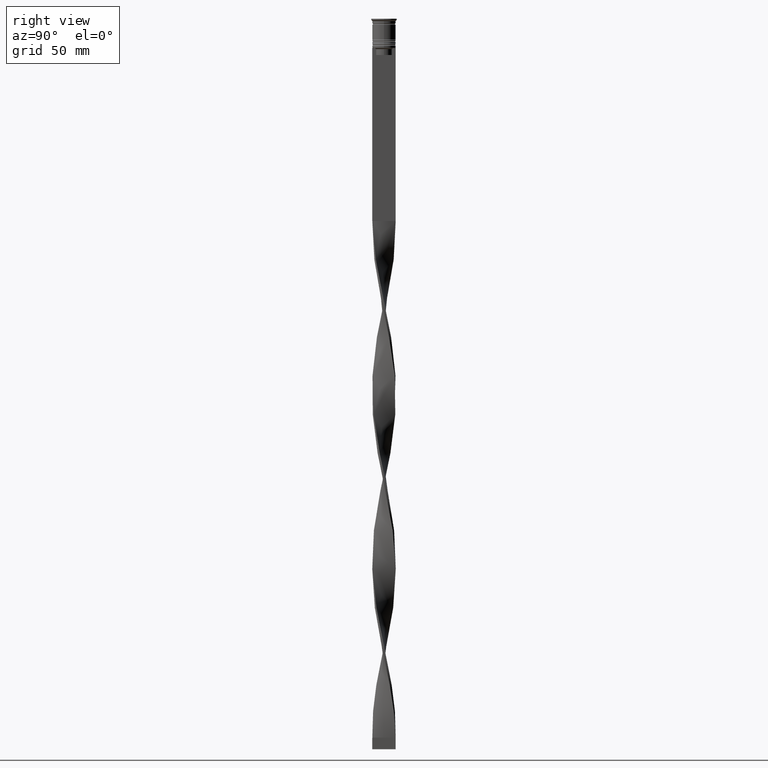
[diagram: clean part render]
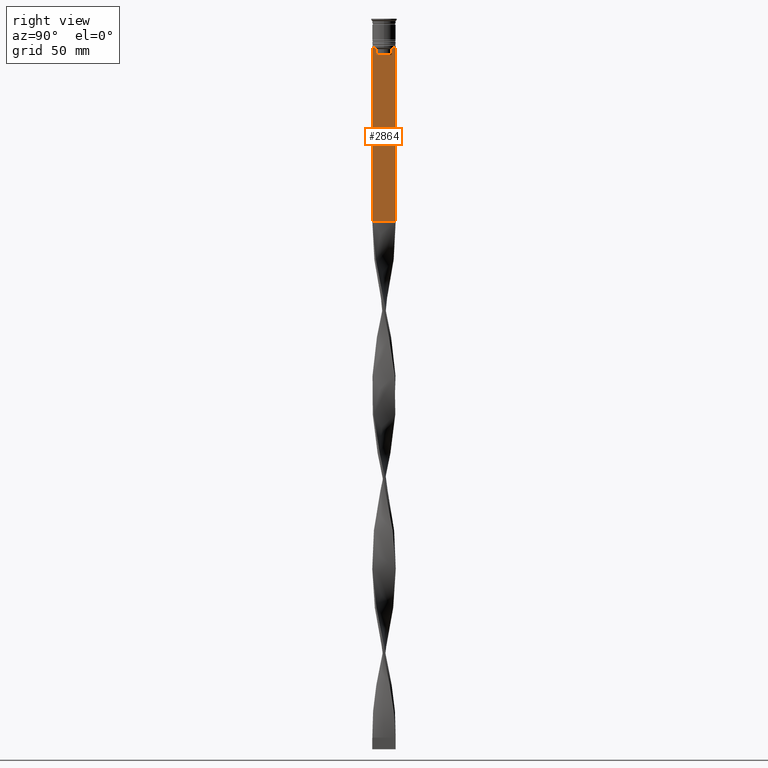
[diagram: same view with one face highlighted and labeled with its STEP entity id]
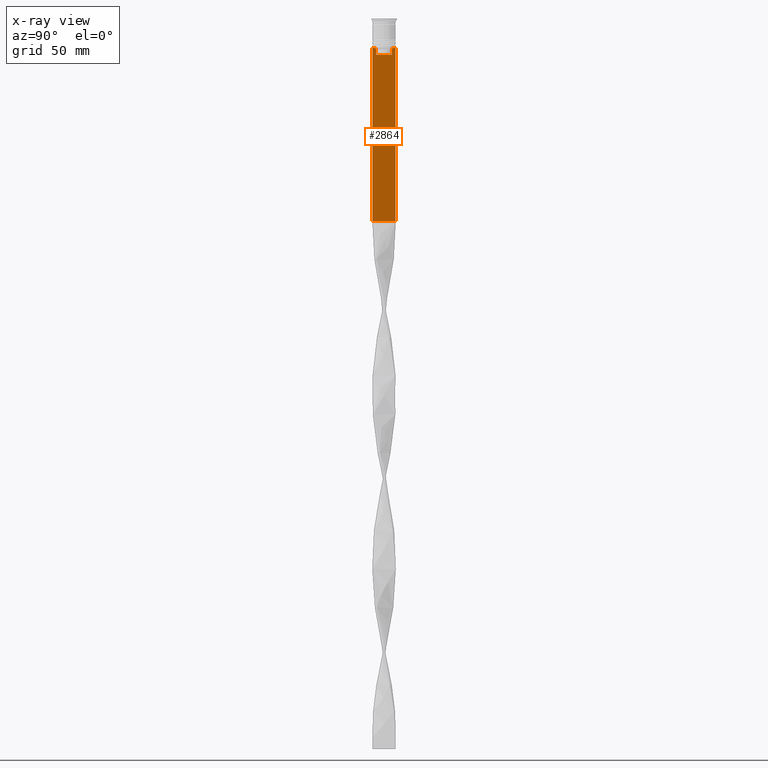
[diagram: x-ray of the same camera — body ghosted, the highlighted face saturated]
A machine part, right view. The second image highlights one B-rep face of the part: STEP entity #2864.
The next image is the same camera in x-ray: the body ghosted, the highlighted face saturated — about 0% of this face is hidden behind the body in this view.
In plain terms, the highlighted planar face has unit normal (-1, 0, 0).
Its self-contained STEP definition (entity closure, byte-faithful):
#1 = VERTEX_POINT ( 'NONE', #1736 ) ;
#27 = ORIENTED_EDGE ( 'NONE', *, *, #791, .T. ) ;
#30 = DIRECTION ( 'NONE',  ( 0.000000000000000000, -1.000000000000000000, 0.000000000000000000 ) ) ;
#49 = ORIENTED_EDGE ( 'NONE', *, *, #378, .T. ) ;
#98 = CARTESIAN_POINT ( 'NONE',  ( 0.5000000000000000000, 5.000000000000000888, -86.50000000000000000 ) ) ;
#123 = CARTESIAN_POINT ( 'NONE',  ( 0.5000000000000000000, 3.699657965831574913, -12.66677026074361301 ) ) ;
#124 = CARTESIAN_POINT ( 'NONE',  ( 0.5000000000000000000, -4.999999999999999112, -86.50000000000000000 ) ) ;
#131 = LINE ( 'NONE', #3164, #3170 ) ;
#156 = EDGE_CURVE ( 'NONE', #4128, #1032, #131, .T. ) ;
#236 = CARTESIAN_POINT ( 'NONE',  ( 0.5000000000000000000, -3.363034344160045208, -13.00000000000000178 ) ) ;
#242 = LINE ( 'NONE', #1522, #1853 ) ;
#271 = LINE ( 'NONE', #608, #4028 ) ;
#291 = VERTEX_POINT ( 'NONE', #236 ) ;
#296 = VERTEX_POINT ( 'NONE', #4023 ) ;
#308 = FACE_OUTER_BOUND ( 'NONE', #2688, .T. ) ;
#378 = EDGE_CURVE ( 'NONE', #4128, #2834, #3224, .T. ) ;
#404 = ORIENTED_EDGE ( 'NONE', *, *, #1099, .T. ) ;
#608 = CARTESIAN_POINT ( 'NONE',  ( 0.5000000000000000000, -4.999999999999999112, -12.50000000000000000 ) ) ;
#624 = DIRECTION ( 'NONE',  ( -1.000000000000000000, 0.000000000000000000, 0.000000000000000000 ) ) ;
#642 = CARTESIAN_POINT ( 'NONE',  ( 0.5000000000000000000, 4.874423042781575788, -12.50000000000000000 ) ) ;
#791 = EDGE_CURVE ( 'NONE', #1, #2099, #271, .T. ) ;
#908 = VECTOR ( 'NONE', #3247, 1000.000000000000000 ) ;
#920 = EDGE_CURVE ( 'NONE', #2099, #2371, #2309, .T. ) ;
#958 = DIRECTION ( 'NONE',  ( 0.000000000000000000, 0.000000000000000000, -1.000000000000000000 ) ) ;
#959 = DIRECTION ( 'NONE',  ( 0.000000000000000000, 0.000000000000000000, 1.000000000000000000 ) ) ;
#1003 = CARTESIAN_POINT ( 'NONE',  ( 0.5000000000000000000, -3.363034344160045652, -15.50000000000000000 ) ) ;
#1032 = VERTEX_POINT ( 'NONE', #98 ) ;
#1070 = DIRECTION ( 'NONE',  ( 0.000000000000000000, 0.000000000000000000, -1.000000000000000000 ) ) ;
#1099 = EDGE_CURVE ( 'NONE', #4087, #296, #3876, .T. ) ;
#1129 = CARTESIAN_POINT ( 'NONE',  ( 0.5000000000000000000, 3.363034344160045208, 0.000000000000000000 ) ) ;
#1164 = DIRECTION ( 'NONE',  ( -0.000000000000000000, -0.000000000000000000, 1.000000000000000000 ) ) ;
#1229 = CARTESIAN_POINT ( 'NONE',  ( 0.5000000000000000000, -4.999999999999999112, -86.50000000000000000 ) ) ;
#1287 = CARTESIAN_POINT ( 'NONE',  ( 0.5000000000000000000, -4.999999999999999112, -12.50000000000000000 ) ) ;
#1466 = EDGE_CURVE ( 'NONE', #4103, #1, #2219, .T. ) ;
#1500 = DIRECTION ( 'NONE',  ( 0.000000000000000000, 1.000000000000000000, 0.000000000000000000 ) ) ;
#1522 = CARTESIAN_POINT ( 'NONE',  ( 0.5000000000000000000, -3.363034344160045208, 0.000000000000000000 ) ) ;
#1557 = DIRECTION ( 'NONE',  ( 0.000000000000000000, -1.000000000000000000, 0.000000000000000000 ) ) ;
#1693 = LINE ( 'NONE', #1129, #2177 ) ;
#1707 = EDGE_CURVE ( 'NONE', #2834, #4087, #2297, .T. ) ;
#1736 = CARTESIAN_POINT ( 'NONE',  ( 0.5000000000000000000, -4.874423042781575788, -12.50000000000000000 ) ) ;
#1853 = VECTOR ( 'NONE', #1164, 1000.000000000000000 ) ;
#1858 = CARTESIAN_POINT ( 'NONE',  ( 0.5000000000000000000, -3.867815921162742754, -12.50000000000000000 ) ) ;
#1875 = DIRECTION ( 'NONE',  ( 0.000000000000000000, -1.000000000000000000, 0.000000000000000000 ) ) ;
#1908 = CARTESIAN_POINT ( 'NONE',  ( 0.5000000000000000000, 3.399999999999998135, -15.50000000000000000 ) ) ;
#1922 = B_SPLINE_CURVE_WITH_KNOTS ( 'NONE', 3,
 ( #3083, #2421, #3701, #4056 ),
 .UNSPECIFIED., .F., .F.,
 ( 4, 4 ),
 ( 0.01632394437298965648, 0.01703543518243618576 ),
 .UNSPECIFIED. ) ;
#1946 = ORIENTED_EDGE ( 'NONE', *, *, #3763, .T. ) ;
#1957 = CARTESIAN_POINT ( 'NONE',  ( 0.5000000000000000000, -4.999999999999999112, -2.450124378879110054 ) ) ;
#2011 = CARTESIAN_POINT ( 'NONE',  ( 0.5000000000000000000, -4.999999999999999112, -12.50000000000000000 ) ) ;
#2078 = ORIENTED_EDGE ( 'NONE', *, *, #1707, .T. ) ;
#2099 = VERTEX_POINT ( 'NONE', #2914 ) ;
#2115 = CARTESIAN_POINT ( 'NONE',  ( 0.5000000000000000000, 3.363034344160045208, -13.00000000000000178 ) ) ;
#2175 = VECTOR ( 'NONE', #30, 1000.000000000000000 ) ;
#2177 = VECTOR ( 'NONE', #1070, 1000.000000000000000 ) ;
#2219 = LINE ( 'NONE', #1287, #2175 ) ;
#2247 = DIRECTION ( 'NONE',  ( 0.000000000000000000, 0.000000000000000000, -1.000000000000000000 ) ) ;
#2297 = LINE ( 'NONE', #2011, #4109 ) ;
#2309 = LINE ( 'NONE', #1957, #3969 ) ;
#2371 = VERTEX_POINT ( 'NONE', #124 ) ;
#2421 = CARTESIAN_POINT ( 'NONE',  ( 0.5000000000000000000, -3.531412985305424801, -12.83345201382502765 ) ) ;
#2533 = CARTESIAN_POINT ( 'NONE',  ( 0.5000000000000000000, 3.363034344160045652, -15.50000000000000000 ) ) ;
#2567 = EDGE_CURVE ( 'NONE', #296, #2844, #1693, .T. ) ;
#2571 = ORIENTED_EDGE ( 'NONE', *, *, #2567, .T. ) ;
#2637 = ORIENTED_EDGE ( 'NONE', *, *, #2685, .T. ) ;
#2671 = CARTESIAN_POINT ( 'NONE',  ( 0.5000000000000000000, 3.531412678228260216, -12.83345231756357840 ) ) ;
#2685 = EDGE_CURVE ( 'NONE', #2371, #1032, #3125, .T. ) ;
#2688 = EDGE_LOOP ( 'NONE', ( #2078, #404, #2571, #3860, #3156, #1946, #3255, #27, #2833, #2637, #2759, #49 ) ) ;
#2722 = AXIS2_PLACEMENT_3D ( 'NONE', #3845, #624, #959 ) ;
#2759 = ORIENTED_EDGE ( 'NONE', *, *, #156, .F. ) ;
#2833 = ORIENTED_EDGE ( 'NONE', *, *, #920, .T. ) ;
#2834 = VERTEX_POINT ( 'NONE', #642 ) ;
#2844 = VERTEX_POINT ( 'NONE', #2533 ) ;
#2863 = VECTOR ( 'NONE', #1557, 1000.000000000000000 ) ;
#2864 = ADVANCED_FACE ( 'NONE', ( #308 ), #3146, .F. ) ;
#2895 = VERTEX_POINT ( 'NONE', #1003 ) ;
#2914 = CARTESIAN_POINT ( 'NONE',  ( 0.5000000000000000000, -4.999999999999999112, -12.50000000000000000 ) ) ;
#2986 = CARTESIAN_POINT ( 'NONE',  ( 0.5000000000000000000, 3.867815921162742754, -12.50000000000000000 ) ) ;
#3002 = CARTESIAN_POINT ( 'NONE',  ( 0.5000000000000000000, -4.999999999999999112, -12.50000000000000000 ) ) ;
#3083 = CARTESIAN_POINT ( 'NONE',  ( 0.5000000000000000000, -3.363034344160045208, -13.00000000000000178 ) ) ;
#3120 = VECTOR ( 'NONE', #1500, 1000.000000000000000 ) ;
#3125 = LINE ( 'NONE', #1229, #3120 ) ;
#3146 = PLANE ( 'NONE',  #2722 ) ;
#3156 = ORIENTED_EDGE ( 'NONE', *, *, #3715, .T. ) ;
#3164 = CARTESIAN_POINT ( 'NONE',  ( 0.5000000000000000000, 5.000000000000000888, -2.450124378879110054 ) ) ;
#3170 = VECTOR ( 'NONE', #958, 1000.000000000000000 ) ;
#3202 = CARTESIAN_POINT ( 'NONE',  ( 0.5000000000000000000, 3.867815921162742754, -12.50000000000000000 ) ) ;
#3224 = LINE ( 'NONE', #3002, #908 ) ;
#3247 = DIRECTION ( 'NONE',  ( 0.000000000000000000, -1.000000000000000000, 0.000000000000000000 ) ) ;
#3255 = ORIENTED_EDGE ( 'NONE', *, *, #1466, .T. ) ;
#3415 = EDGE_CURVE ( 'NONE', #2844, #2895, #3535, .T. ) ;
#3535 = LINE ( 'NONE', #1908, #2863 ) ;
#3576 = DIRECTION ( 'NONE',  ( 0.000000000000000000, -1.000000000000000000, 0.000000000000000000 ) ) ;
#3701 = CARTESIAN_POINT ( 'NONE',  ( 0.5000000000000000000, -3.699658232838647365, -12.66676999593996555 ) ) ;
#3709 = CARTESIAN_POINT ( 'NONE',  ( 0.5000000000000000000, 5.000000000000000888, -12.50000000000000000 ) ) ;
#3715 = EDGE_CURVE ( 'NONE', #2895, #291, #242, .T. ) ;
#3763 = EDGE_CURVE ( 'NONE', #291, #4103, #1922, .T. ) ;
#3845 = CARTESIAN_POINT ( 'NONE',  ( 0.5000000000000000000, -4.999999999999999112, -2.450124378879110054 ) ) ;
#3860 = ORIENTED_EDGE ( 'NONE', *, *, #3415, .T. ) ;
#3876 = B_SPLINE_CURVE_WITH_KNOTS ( 'NONE', 3,
 ( #2986, #123, #2671, #2115 ),
 .UNSPECIFIED., .F., .F.,
 ( 4, 4 ),
 ( 0.006644825462451552783, 0.007355321358912435097 ),
 .UNSPECIFIED. ) ;
#3969 = VECTOR ( 'NONE', #2247, 1000.000000000000000 ) ;
#4023 = CARTESIAN_POINT ( 'NONE',  ( 0.5000000000000000000, 3.363034344160045208, -13.00000000000000178 ) ) ;
#4028 = VECTOR ( 'NONE', #1875, 1000.000000000000000 ) ;
#4056 = CARTESIAN_POINT ( 'NONE',  ( 0.5000000000000000000, -3.867815921162742754, -12.50000000000000000 ) ) ;
#4087 = VERTEX_POINT ( 'NONE', #3202 ) ;
#4103 = VERTEX_POINT ( 'NONE', #1858 ) ;
#4109 = VECTOR ( 'NONE', #3576, 1000.000000000000000 ) ;
#4128 = VERTEX_POINT ( 'NONE', #3709 ) ;